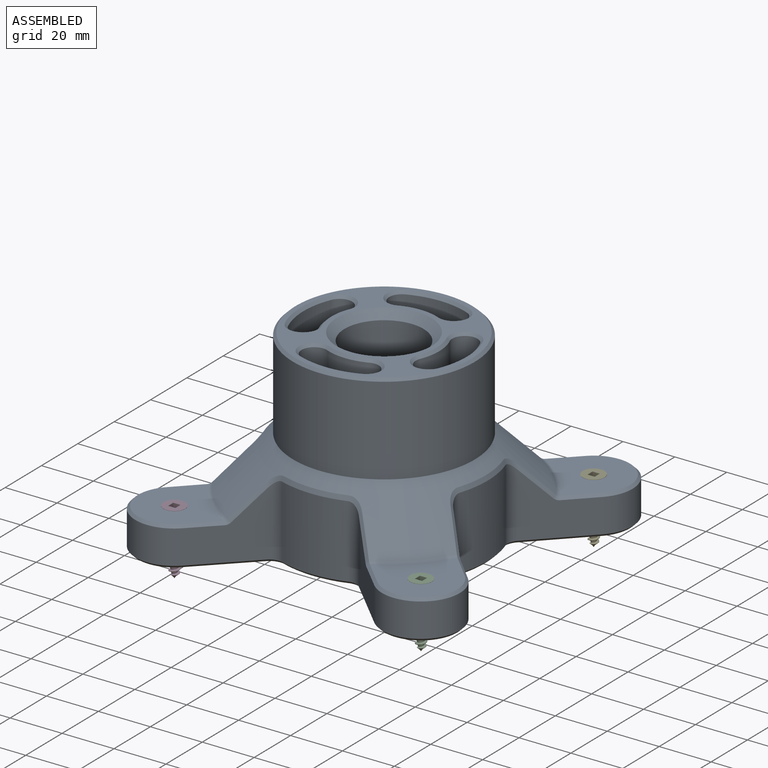
[diagram: assembled view]
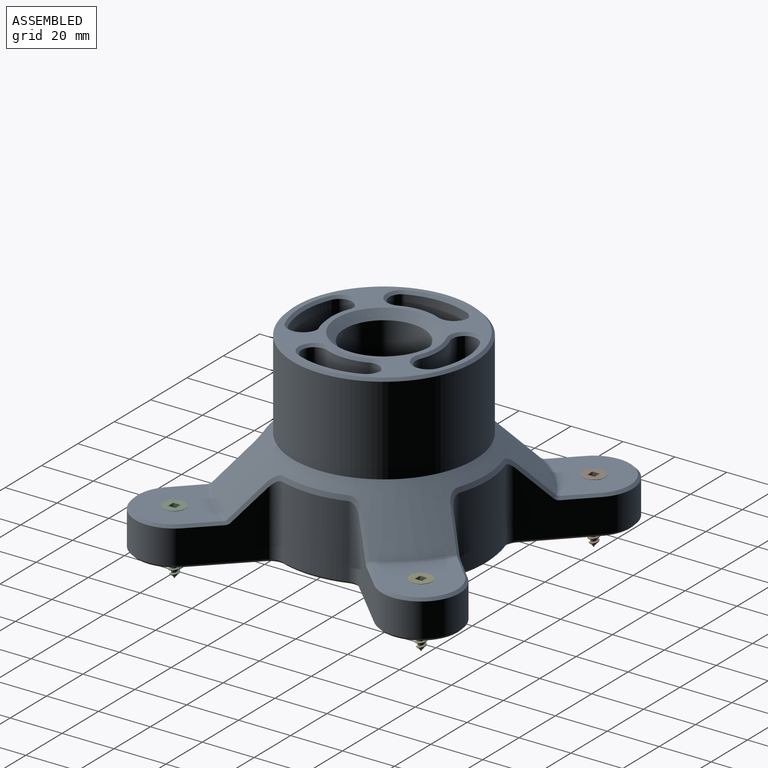
[diagram: assembled view, second angle]
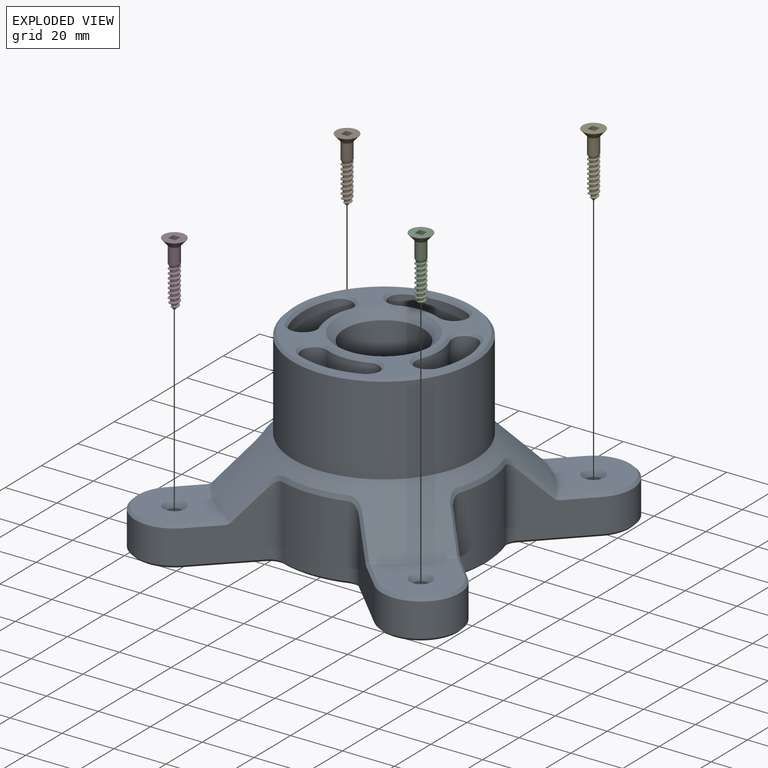
[diagram: exploded view]
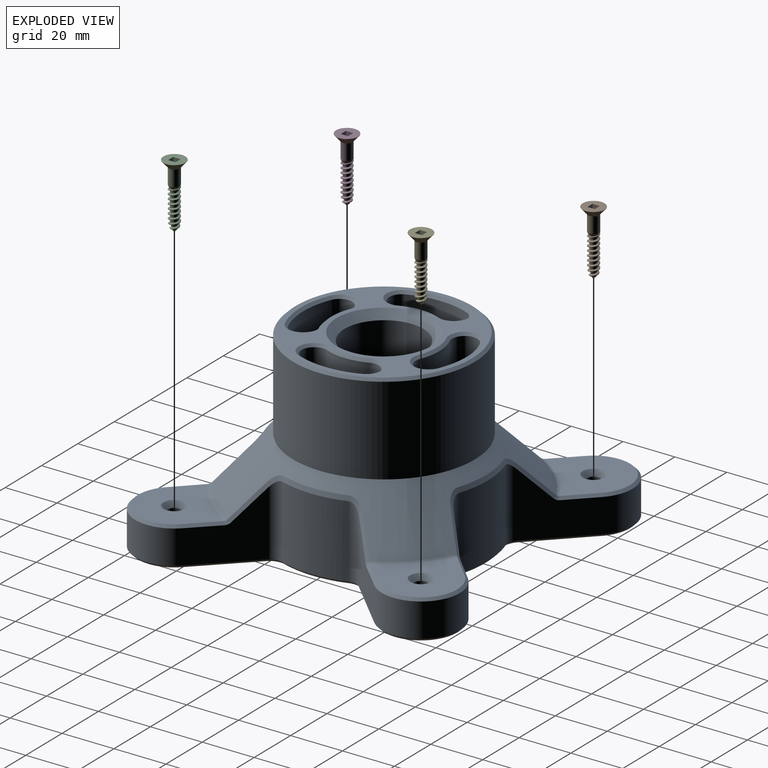
[diagram: exploded view, second angle]
FCSTD DOCUMENT  (FreeCAD 1.0R39319 (Git))
Label: Bench_VDI30_stand
Comment: A VDI-30 tool stand that can be mouted to a wood-top workbench with #8 wood screws.
License: Attribution-NonCommercial-ShareAlike 4.0 International
LicenseURL: https://creativecommons.org/licenses/by-nc-sa/4.0/
objects: TechDraw::DrawViewDimension×12, Sketcher::SketchObject×6, App::Link×5, App::FeaturePython×5, PartDesign::Chamfer×4, PartDesign::Pocket×3, PartDesign::Pad×2, PartDesign::PolarPattern×2, PartDesign::Fillet×2, TechDraw::DrawProjGroupItem×2, TechDraw::DrawViewAnnotation×2, TechDraw::DrawLeaderLine×2, PartDesign::Hole×1, PartDesign::Body×1, Part::Feature×1, Assembly::JointGroup×1, Assembly::AssemblyObject×1, TechDraw::DrawSVGTemplate×1, TechDraw::DrawProjGroup×1, TechDraw::DrawViewSection×1, +2 more types
note: 75 computed .brp shape members not serialized (recipe doc carries the construction recipe); baked Part::Feature solids carry a one-line shape summary decoded from their .brp

FEATURE [Sketcher::SketchObject] Sketch004  label="BaseSketch001"
  ArcFitTolerance = 1e-06
  AttachmentSupport = -> [XY_Plane001]
  FullyConstrained = true
  MakeInternals = false
  MapMode = 5
  sketch-geometry (10):
    g0: LineSegment StartX=-47.5 StartY=-62.5 StartZ=0 EndX=47.5 EndY=-62.5 EndZ=0
    g1: LineSegment StartX=62.5 StartY=-47.5 StartZ=0 EndX=62.5 EndY=47.5 EndZ=0
    g2: LineSegment StartX=47.5 StartY=62.5 StartZ=0 EndX=-47.5 EndY=62.5 EndZ=0
    g3: LineSegment StartX=-62.5 StartY=47.5 StartZ=0 EndX=-62.5 EndY=-47.5 EndZ=0
    g4: ArcOfCircle CenterX=-47.5 CenterY=-47.5 CenterZ=0 NormalX=0 NormalY=0 NormalZ=1 AngleXU=0 Radius=15 StartAngle=3.14159 EndAngle=4.71239
    g5: ArcOfCircle CenterX=47.5 CenterY=-47.5 CenterZ=0 NormalX=0 NormalY=0 NormalZ=1 AngleXU=0 Radius=15 StartAngle=4.71239 EndAngle=6.28319
    g6: ArcOfCircle CenterX=47.5 CenterY=47.5 CenterZ=0 NormalX=0 NormalY=0 NormalZ=1 AngleXU=0 Radius=15 StartAngle=3.8e-15 EndAngle=1.5708
    g7: ArcOfCircle CenterX=-47.5 CenterY=47.5 CenterZ=0 NormalX=0 NormalY=0 NormalZ=1 AngleXU=0 Radius=15 StartAngle=1.5708 EndAngle=3.14159
    g8: GeomPoint [constr] X=62.5 Y=62.5 Z=0
    g9: GeomPoint [constr] X=0 Y=0 Z=0
  constraints (22):
    c: Tangent(g0,g4) = -1.5708
    c: Tangent(g0,g5) = -1.5708
    c: Tangent(g1,g5) = -1.5708
    c: Tangent(g1,g6) = -1.5708
    c: Tangent(g2,g6) = -1.5708
    c: Tangent(g2,g7) = -1.5708
    c: Tangent(g3,g7) = -1.5708
    c: Tangent(g3,g4) = -1.5708
    c: Horizontal(g0)
    c: Horizontal(g2)
    c: Vertical(g1)
    c: Vertical(g3)
    c: Equal(g4,g5)
    c: Equal(g5,g6)
    c: Equal(g6,g7)
    c: Symmetric(g2,g0,g9)
    c: PointOnObject(g8,g1)
    c: PointOnObject(g8,g2)
    c: Distance(g1,g3) = 125  'LenX'
    c: Distance(g0,g2) = 125  'LenY'
    c: Radius(g5) = 15  'CornerRad'
    c: Coincident(g9,g-1)
FEATURE [PartDesign::Pad] Pad002  label="Base001"
  Direction = (0,0,1)
  Length = 15
  Length2 = 10
  Profile = -> Sketch004
  ReferenceAxis = -> Sketch004 [N_Axis]
  Refine = true
  Suppressed = false
  Type = 0
FEATURE [Sketcher::SketchObject] Sketch005
  ArcFitTolerance = 1e-06
  AttachmentSupport = -> [Pad002]
  FullyConstrained = true
  MakeInternals = false
  MapMode = 5
  Placement = pos=(0,0,15) rot=(0,0,1;0rad)
  sketch-geometry (1):
    g0: Circle CenterX=0 CenterY=0 CenterZ=0 NormalX=0 NormalY=0 NormalZ=1 AngleXU=0 Radius=35
  constraints (2):
    c: Diameter(g0) = 70
    c: Coincident(g0,g-1)
FEATURE [PartDesign::Pad] Pad003
  BaseFeature = -> Pad002
  Direction = (0,0,1)
  Length = 55
  Length2 = 10
  Profile = -> Sketch005
  ReferenceAxis = -> Sketch005 [N_Axis]
  Refine = true
  Suppressed = false
  Type = 0
  expr: Length = 70 mm - Pad002.Length
FEATURE [Sketcher::SketchObject] Sketch006
  ArcFitTolerance = 1e-06
  AttachmentSupport = -> [Pad003]
  FullyConstrained = true
  MakeInternals = false
  MapMode = 5
  Placement = pos=(0,0,70) rot=(0,0,1;0rad)
  sketch-geometry (1):
    g0: Circle CenterX=0 CenterY=0 CenterZ=0 NormalX=0 NormalY=0 NormalZ=1 AngleXU=0 Radius=15.25
  constraints (2):
    c: Diameter(g0) = 30.5
    c: Coincident(g0,g-1)
FEATURE [PartDesign::Pocket] Pocket001
  BaseFeature = -> Pad003
  Direction = (0,0,-1)
  Length = 5
  Length2 = 5
  Profile = -> Sketch006
  ReferenceAxis = -> Sketch006 [N_Axis]
  Refine = true
  Suppressed = false
  Type = 1
FEATURE [Sketcher::SketchObject] Sketch007
  ArcFitTolerance = 1e-06
  FullyConstrained = false
  MakeInternals = false
  MapMode = 5
  Placement = pos=(0,0,15) rot=(0,0,1;0rad)
  sketch-geometry (4):
    g0: Circle CenterX=47.5 CenterY=-47.5 CenterZ=0 NormalX=0 NormalY=0 NormalZ=1 AngleXU=0 Radius=4.88756
    g1: Circle CenterX=47.5 CenterY=47.5 CenterZ=0 NormalX=0 NormalY=0 NormalZ=1 AngleXU=0 Radius=5.71955
    g2: Circle CenterX=-47.5 CenterY=47.5 CenterZ=0 NormalX=0 NormalY=0 NormalZ=1 AngleXU=0 Radius=5.99599
    g3: Circle CenterX=-47.5 CenterY=-47.5 CenterZ=0 NormalX=0 NormalY=0 NormalZ=1 AngleXU=0 Radius=6.64661
  constraints (4):
    c: Coincident(g0,g-6)
    c: Coincident(g1,g-3)
    c: Coincident(g2,g-4)
    c: Coincident(g3,g-5)
FEATURE [PartDesign::Hole] Hole001  label="#8_WoodScrewHoles"
  BaseFeature = -> Pocket001
  CustomThreadClearance = 0
  Depth = 25
  DepthType = 0
  Diameter = 5
  DrillForDepth = false
  DrillPoint = 1
  DrillPointAngle = 118
  HoleCutCountersinkAngle = 82
  HoleCutCustomValues = false
  HoleCutDepth = 0
  HoleCutDiameter = 8.4328
  HoleCutType = 2
  ModelThread = false
  Profile = -> Sketch007
  Refine = true
  Suppressed = false
  Tapered = false
  TaperedAngle = 90
  ThreadClass = 0
  ThreadDepth = 25
  ThreadDepthType = 0
  ThreadDirection = 0
  ThreadFit = 0
  ThreadSize = 6
  ThreadType = 3
  Threaded = false
  UseCustomThreadClearance = false
FEATURE [Sketcher::SketchObject] Sketch008
  ArcFitTolerance = 1e-06
  AttachmentSupport = -> [XY_Plane001]
  FullyConstrained = true
  MakeInternals = false
  MapMode = 5
  sketch-geometry (8):
    g0: Circle [constr] CenterX=0 CenterY=0 CenterZ=0 NormalX=0 NormalY=0 NormalZ=1 AngleXU=0 Radius=40
    g1: ArcOfCircle CenterX=5.3e-15 CenterY=-3.5e-15 CenterZ=0 NormalX=0 NormalY=0 NormalZ=1 AngleXU=0 Radius=40 StartAngle=1.17406 EndAngle=1.96753
    g2: LineSegment [constr] StartX=-47.5 StartY=47.5 StartZ=0 EndX=0.5 EndY=0 EndZ=0
    g3: ArcOfCircle CenterX=-47.5 CenterY=47.5 CenterZ=0 NormalX=0 NormalY=0 NormalZ=1 AngleXU=0 Radius=15 StartAngle=0.790634 EndAngle=1.5708
    g4: ArcOfCircle CenterX=47.5 CenterY=47.5 CenterZ=0 NormalX=0 NormalY=0 NormalZ=1 AngleXU=0 Radius=15 StartAngle=1.5708 EndAngle=2.35096
    g5: LineSegment StartX=-36.9491 StartY=58.162 StartZ=0 EndX=-15.4563 EndY=36.8931 EndZ=0
    g6: LineSegment StartX=15.4563 StartY=36.8931 StartZ=0 EndX=36.9491 EndY=58.162 EndZ=0
    g7: LineSegment StartX=47.5 StartY=62.5 StartZ=0 EndX=-47.5 EndY=62.5 EndZ=0
  constraints (19):
    c: Diameter(g0) = 80
    c: Coincident(g0,g-1)
    c: PointOnObject(g1,g0)
    c: PointOnObject(g1,g0)
    c: Equal(g1,g0)
    c: Horizontal(g1,g1)
    c: Symmetric(g-1,g-1,g2)
    c: Coincident(g3,g2)
    c: Coincident(g3,g-4)
    c: Coincident(g4,g-3)
    c: Coincident(g5,g1)
    c: Coincident(g6,g1)
    c: Tangent(g7,g4) = -1.5708
    c: Coincident(g7,g3)
    c: Tangent(g5,g3) = 1.5708
    c: Tangent(g6,g4) = 1.5708
    c: Parallel(g5,g2)
    c: Equal(g6,g5)
    c: Coincident(g2,g-4)
FEATURE [PartDesign::Chamfer] Chamfer002
  Angle = 45
  Base = -> Hole001 [Edge29]
  BaseFeature = -> Hole001
  ChamferType = 0
  FlipDirection = false
  Refine = true
  Size = 20
  Size2 = 1
  SupportTransform = false
  Suppressed = false
  UseAllEdges = false
FEATURE [PartDesign::Pocket] Pocket002
  BaseFeature = -> Chamfer002
  Direction = (0,0,-1)
  Length = 5
  Length2 = 5
  Profile = -> Sketch008
  ReferenceAxis = -> Sketch008 [N_Axis]
  Refine = true
  Reversed = true
  Suppressed = false
  Type = 1
FEATURE [PartDesign::PolarPattern] PolarPattern
  Angle = 360
  Axis = -> Sketch008 [N_Axis]
  BaseFeature = -> Pocket002
  Mode = 0
  Occurrences = 4
  Offset = 120
  Originals = -> [Pocket002]
  Refine = true
  Suppressed = false
  TransformMode = 0
FEATURE [PartDesign::Fillet] Fillet001
  Base = -> PolarPattern [Edge52,Edge55,Edge68,Edge65,Edge28,Edge35,Edge40,Edge30]
  BaseFeature = -> PolarPattern
  Radius = 5
  Refine = true
  SupportTransform = false
  Suppressed = false
  UseAllEdges = false
FEATURE [PartDesign::Fillet] Fillet002
  Base = -> Fillet001 [Edge10,Edge3,Edge26,Edge15]
  BaseFeature = -> Fillet001
  Radius = 2
  Refine = true
  SupportTransform = false
  Suppressed = false
  UseAllEdges = false
FEATURE [PartDesign::Chamfer] Chamfer003
  Angle = 45
  Base = -> Fillet002 [Edge41,Edge30,Edge113,Edge80]
  BaseFeature = -> Fillet002
  ChamferType = 0
  FlipDirection = false
  Refine = true
  Size = 1
  Size2 = 1
  SupportTransform = false
  Suppressed = false
  UseAllEdges = false
FEATURE [PartDesign::Chamfer] Chamfer004
  Angle = 45
  Base = -> Chamfer003 [Edge256]
  BaseFeature = -> Chamfer003
  ChamferType = 0
  FlipDirection = false
  Refine = true
  Size = 3
  Size2 = 1
  SupportTransform = false
  Suppressed = false
  UseAllEdges = false
FEATURE [Sketcher::SketchObject] Sketch009
  ArcFitTolerance = 1e-06
  AttachmentSupport = -> [Chamfer004]
  ExternalGeometry = -> [Chamfer004]
  FullyConstrained = true
  MakeInternals = false
  MapMode = 5
  Placement = pos=(0,0,70) rot=(0,0,1;0rad)
  sketch-geometry (4):
    g0: ArcOfCircle CenterX=0 CenterY=0 CenterZ=0 NormalX=0 NormalY=0 NormalZ=1 AngleXU=0 Radius=31 StartAngle=1.1781 EndAngle=1.9635
    g1: ArcOfCircle CenterX=-9.9976 CenterY=24.1364 CenterZ=0 NormalX=0 NormalY=0 NormalZ=1 AngleXU=0 Radius=4.875 StartAngle=1.9635 EndAngle=5.10509
    g2: ArcOfCircle CenterX=9.9976 CenterY=24.1364 CenterZ=0 NormalX=0 NormalY=0 NormalZ=1 AngleXU=0 Radius=4.875 StartAngle=4.31969 EndAngle=7.46128
    g3: ArcOfCircle CenterX=0 CenterY=0 CenterZ=0 NormalX=0 NormalY=0 NormalZ=1 AngleXU=0 Radius=21.25 StartAngle=1.1781 EndAngle=1.9635
  constraints (10):
    c: Coincident(g0,g3)
    c: Tangent(g3,g2) = 1.5708
    c: Tangent(g3,g1) = 1.5708
    c: Tangent(g0,g2) = -1.5708
    c: Tangent(g0,g1) = -1.5708
    c: Coincident(g0,g-1)
    c: Horizontal(g2,g1)
    c: Distance(g3,g-3) = 3
    c: Distance(g0,g-4) = 3
    c: Angle(g0) = 0.785398
FEATURE [PartDesign::Pocket] Pocket003
  BaseFeature = -> Chamfer004
  Direction = (0,0,-1)
  Length = 5
  Length2 = 5
  Profile = -> Sketch009
  ReferenceAxis = -> Sketch009 [N_Axis]
  Refine = true
  Suppressed = false
  Type = 1
FEATURE [PartDesign::PolarPattern] PolarPattern001
  Angle = 360
  Axis = -> Sketch009 [N_Axis]
  BaseFeature = -> Pocket003
  Mode = 0
  Occurrences = 4
  Offset = 120
  Originals = -> [Pocket003]
  Refine = true
  Suppressed = false
  TransformMode = 0
FEATURE [PartDesign::Chamfer] Chamfer005
  Angle = 45
  Base = -> PolarPattern001 [Edge5,Edge13,Edge17,Edge7,Edge25,Edge33,Edge53,Edge44]
  BaseFeature = -> PolarPattern001
  ChamferType = 0
  FlipDirection = false
  Refine = true
  Size = 1
  Size2 = 1
  SupportTransform = false
  Suppressed = false
  UseAllEdges = false
FEATURE [PartDesign::Body] Body001  label="Body"
  AllowCompound = false
  Group = -> [Sketch004,Pad002,Sketch005,Pad003,Sketch006,Pocket001,Sketch007,Hole001,Sketch008,Chamfer002,Pocket002,PolarPattern,Fillet001,Fillet002,Chamfer003,Chamfer004,Sketch009,Pocket003,PolarPattern001,Chamfer005]
  Origin = -> Origin001
  Tip = -> Chamfer005
FEATURE [Part::Feature] Part__Feature  label="90610A199_Square-Drive Flat Head Screws for Wood"
  shape: bbox 25.82 x 8.433 x 8.433 mm, 50 faces (baked)
FEATURE [App::Link] BodyV002  label="BodyV003"
  LinkedObject = -> Body001
FEATURE [App::FeaturePython] GroundedJoint  # Assembly grounded joint (typed FeaturePython)
  ObjectToGround = -> BodyV002
FEATURE [App::Link] _0610A199_Square_Drive_Flat_Head_Screws_for_Wood  label="90610A199_Square-Drive Flat Head Screws for Wood001"
  LinkPlacement = pos=(-47.5,47.5,2.38557) rot=(0,1,0;1.5708rad)
  LinkedObject = -> Part__Feature
  Placement = pos=(-47.5,47.5,2.38557) rot=(0,1,0;1.5708rad)
FEATURE [App::Link] _0610A199_Square_Drive_Flat_Head_Screws_for_Wood001  label="90610A199_Square-Drive Flat Head Screws for Wood002"
  LinkPlacement = pos=(47.5,-47.5,2.38557) rot=(0,1,0;1.5708rad)
  LinkedObject = -> Part__Feature
  Placement = pos=(47.5,-47.5,2.38557) rot=(0,1,0;1.5708rad)
FEATURE [App::Link] _0610A199_Square_Drive_Flat_Head_Screws_for_Wood002  label="90610A199_Square-Drive Flat Head Screws for Wood003"
  LinkPlacement = pos=(-47.5,-47.5,2.38557) rot=(0,1,0;1.5708rad)
  LinkedObject = -> Part__Feature
  Placement = pos=(-47.5,-47.5,2.38557) rot=(0,1,0;1.5708rad)
FEATURE [App::Link] _0610A199_Square_Drive_Flat_Head_Screws_for_Wood003  label="90610A199_Square-Drive Flat Head Screws for Wood004"
  LinkPlacement = pos=(47.5,47.5,2.38557) rot=(0,1,0;1.5708rad)
  LinkedObject = -> Part__Feature
  Placement = pos=(47.5,47.5,2.38557) rot=(0,1,0;1.5708rad)
FEATURE [App::FeaturePython] Joint  label="Fixed"  # Assembly joint (typed FeaturePython)
  Activated = true
  AngleMax = 0
  AngleMin = 0
  Detach1 = false
  Detach2 = false
  Distance = 0
  Distance2 = 0
  EnableAngleMax = false
  EnableAngleMin = false
  EnableLengthMax = false
  EnableLengthMin = false
  JointType = 0 (Fixed)
  LengthMax = 0
  LengthMin = 0
  Placement1 = pos=(-7.76401,0,0) rot=(0,-1,0;1.5708rad)
  Placement2 = pos=(47.5,-47.5,10.1496) rot=(0,0,1;0rad)
  Reference1 = -> Assembly [_0610A199_Square_Drive_Flat_Head_Screws_for_Wood001.Face36,_0610A199_Square_Drive_Flat_Head_Screws_for_Wood001.Face36]
  Reference2 = -> Assembly [BodyV002.Face155,BodyV002.Face155]
FEATURE [App::FeaturePython] Joint001  label="Fixed001"  # Assembly joint (typed FeaturePython)
  Activated = true
  AngleMax = 0
  AngleMin = 0
  Detach1 = false
  Detach2 = false
  Distance = 0
  Distance2 = 0
  EnableAngleMax = false
  EnableAngleMin = false
  EnableLengthMax = false
  EnableLengthMin = false
  JointType = 0 (Fixed)
  LengthMax = 0
  LengthMin = 0
  Placement1 = pos=(-7.76401,0,0) rot=(0,-1,0;1.5708rad)
  Placement2 = pos=(-47.5,-47.5,10.1496) rot=(0,0,1;0rad)
  Reference1 = -> Assembly [_0610A199_Square_Drive_Flat_Head_Screws_for_Wood002.Face36,_0610A199_Square_Drive_Flat_Head_Screws_for_Wood002.Face36]
  Reference2 = -> Assembly [BodyV002.Face154,BodyV002.Face154]
FEATURE [App::FeaturePython] Joint002  label="Fixed002"  # Assembly joint (typed FeaturePython)
  Activated = true
  AngleMax = 0
  AngleMin = 0
  Detach1 = false
  Detach2 = false
  Distance = 0
  Distance2 = 0
  EnableAngleMax = false
  EnableAngleMin = false
  EnableLengthMax = false
  EnableLengthMin = false
  JointType = 0 (Fixed)
  LengthMax = 0
  LengthMin = 0
  Placement1 = pos=(-47.5,47.5,10.1496) rot=(0,0,1;0rad)
  Placement2 = pos=(-7.76401,0,0) rot=(0,-1,0;1.5708rad)
  Reference1 = -> Assembly [BodyV002.Face156,BodyV002.Face156]
  Reference2 = -> Assembly [_0610A199_Square_Drive_Flat_Head_Screws_for_Wood.Face36,_0610A199_Square_Drive_Flat_Head_Screws_for_Wood.Face36]
FEATURE [App::FeaturePython] Joint003  label="Fixed003"  # Assembly joint (typed FeaturePython)
  Activated = true
  AngleMax = 0
  AngleMin = 0
  Detach1 = false
  Detach2 = false
  Distance = 0
  Distance2 = 0
  EnableAngleMax = false
  EnableAngleMin = false
  EnableLengthMax = false
  EnableLengthMin = false
  JointType = 0 (Fixed)
  LengthMax = 0
  LengthMin = 0
  Placement1 = pos=(47.5,47.5,10.1496) rot=(0,0,1;0rad)
  Placement2 = pos=(-7.76401,0,0) rot=(0,-1,0;1.5708rad)
  Reference1 = -> Assembly [BodyV002.Face157,BodyV002.Face157]
  Reference2 = -> Assembly [_0610A199_Square_Drive_Flat_Head_Screws_for_Wood003.Face36,_0610A199_Square_Drive_Flat_Head_Screws_for_Wood003.Face36]
FEATURE [Assembly::JointGroup] Joints
  Group = -> [GroundedJoint,Joint,Joint001,Joint002,Joint003]
FEATURE [Assembly::AssemblyObject] Assembly
  Group = -> [Joints,BodyV002,GroundedJoint,_0610A199_Square_Drive_Flat_Head_Screws_for_Wood,_0610A199_Square_Drive_Flat_Head_Screws_for_Wood001,_0610A199_Square_Drive_Flat_Head_Screws_for_Wood002,_0610A199_Square_Drive_Flat_Head_Screws_for_Wood003,Joint,Joint001,Joint002,Joint003]
  Origin = -> Origin002
  Type = Assembly
FEATURE [TechDraw::DrawSVGTemplate] Template
  EditableTexts = approval_person=Luca Goodman; creator=Dennis Chaves; date_of_issue=11/6/2025; document_type=Component Drawing; general_tolerances=ISO 2768-m; identification_number=--; language_code=EN; legal_owner_1=dennischaves.xyz; part_material=PLA Generic; revision_index=AAA; scale=2 : 1; sheet_number=1 / 1; title=Benchtop-fixed VDI30 stand
  Height = 297
  Orientation = 1
  Template = <userpath>/FreeCAD_1.0.2-conda-Windows-x86_64-py311/data/Mod/TechDraw/Templates/A3_Landscape_ISO5457_minimal.svg
  Width = 420
FEATURE [TechDraw::DrawProjGroupItem] View  label="Front"
  CoarseView = false
  Direction = (0,0,1)
  Focus = 100
  HardHidden = false
  IsoCount = 0
  IsoHidden = false
  IsoVisible = false
  LockPosition = true
  Perspective = false
  Rotation = 0
  RotationVector = (1,0,0)
  Scale = 0.5
  ScaleType = 2
  ScrubCount = 1
  SeamHidden = false
  SeamVisible = false
  SmoothHidden = false
  SmoothVisible = true
  Source = -> [Body001]
  Type = 0
  X = 0
  XDirection = (1,0,0)
  Y = 0
FEATURE [TechDraw::DrawProjGroupItem] ProjItem  label="Right"
  CoarseView = false
  Direction = (1,0,1e-16)
  Focus = 100
  HardHidden = false
  IsoCount = 0
  IsoHidden = false
  IsoVisible = false
  LockPosition = false
  Perspective = false
  Rotation = 0
  RotationVector = (1,0,0)
  ScaleType = 1
  ScrubCount = 1
  SeamHidden = false
  SeamVisible = false
  SmoothHidden = false
  SmoothVisible = true
  Source = -> [Body001]
  Type = 2
  X = -78.75
  XDirection = (1e-16,0,-1)
  Y = 0
FEATURE [TechDraw::DrawProjGroup] ProjGroup
  Anchor = -> View
  AutoDistribute = true
  LockPosition = false
  ProjectionType = 0
  Rotation = 0
  Scale = 0.5
  ScaleType = 0
  Source = -> [Body001]
  Views = -> [View,ProjItem]
  X = 210
  Y = 148.5
  spacingX = 30
  spacingY = 15
FEATURE [TechDraw::DrawViewSection] SectionView  label="Section A - A"
  BaseView = -> View
  CoarseView = false
  CutSurfaceDisplay = 2
  Direction = (-0.707107,-0.707107,0)
  FileGeomPattern = <userpath>\FreeCAD_1.0.2-conda-Windows-x86_64-py311\data\Mod/TechDraw/PAT/FCPAT.pat
  FileHatchPattern = <userpath>\FreeCAD_1.0.2-conda-Windows-x86_64-py311\data\Mod/TechDraw/Patterns/simple.svg
  Focus = 100
  FuseBeforeCut = false
  HardHidden = false
  HatchOffset = (0,0,0)
  HatchRotation = 0
  HatchScale = 1
  IsoCount = 0
  IsoHidden = false
  IsoVisible = false
  LockPosition = false
  NameGeomPattern = Diamond
  Perspective = false
  Rotation = -45
  Scale = 0.5
  ScaleType = 0
  ScrubCount = 1
  SeamHidden = false
  SeamVisible = false
  SectionDirection = 4
  SectionLineStretch = 1
  SectionNormal = (-0.707107,-0.707107,0)
  SectionOrigin = (0,0,35)
  SectionSymbol = A
  SmoothHidden = false
  SmoothVisible = true
  Source = -> [Body001]
  TrimAfterCut = false
  UsePreviousCut = false
  X = 284.714
  XDirection = (0.707107,-0.707107,0)
  Y = 231.235
FEATURE [TechDraw::DrawViewDimension] Dimension
  AngleOverride = false
  Arbitrary = false
  ArbitraryTolerances = false
  BoxCorners = (2) [(-17.5,-31.25,-1e-07),(17.5,31.25,1e-07)]
  EqualTolerance = true
  ExtensionAngle = 0
  FormatSpec = %.2w
  FormatSpecOverTolerance = %+.2w
  FormatSpecUnderTolerance = %+.2w
  Inverted = false
  LineAngle = 0
  LockPosition = false
  MeasureType = 1
  OverTolerance = 0
  References2D = -> [ProjItem]
  Rotation = 0
  ScaleType = 1
  TheoreticalExact = false
  Type = 0
  UnderTolerance = 0
  X = -39.875
  Y = 0
FEATURE [TechDraw::DrawViewDimension] Dimension001
  AngleOverride = false
  Arbitrary = false
  ArbitraryTolerances = false
  BoxCorners = (2) [(-17.5,-31.25,-1e-07),(17.5,31.25,1e-07)]
  EqualTolerance = true
  ExtensionAngle = 0
  FormatSpec = %.2w
  FormatSpecOverTolerance = %+.2w
  FormatSpecUnderTolerance = %+.2w
  Inverted = false
  LineAngle = 0
  LockPosition = false
  MeasureType = 1
  OverTolerance = 0
  References2D = -> [ProjItem]
  Rotation = 0
  ScaleType = 1
  TheoreticalExact = false
  Type = 0
  UnderTolerance = 0
  X = -8.75
  Y = -33.9309
FEATURE [TechDraw::DrawViewDimension] Dimension002
  AngleOverride = false
  Arbitrary = false
  ArbitraryTolerances = false
  BoxCorners = (2) [(-41.0741,-24.3952,-1e-07),(24.3952,41.0741,1e-07)]
  EqualTolerance = true
  ExtensionAngle = 0
  FormatSpec = %.2w
  FormatSpecOverTolerance = %+.2w
  FormatSpecUnderTolerance = %+.2w
  Inverted = false
  LineAngle = 0
  LockPosition = false
  MeasureType = 1
  OverTolerance = 0
  References2D = -> [SectionView]
  Rotation = 0
  ScaleType = 1
  TheoreticalExact = false
  Type = 0
  UnderTolerance = 0
  X = -16.8774
  Y = -16.8774
FEATURE [TechDraw::DrawViewDimension] Dimension003
  AngleOverride = false
  Arbitrary = false
  ArbitraryTolerances = false
  BoxCorners = (2) [(-41.0741,-24.3952,-1e-07),(24.3952,41.0741,1e-07)]
  EqualTolerance = true
  ExtensionAngle = 0
  FormatSpec = %.2w
  FormatSpecOverTolerance = %+.2w
  FormatSpecUnderTolerance = %+.2w
  Inverted = false
  LineAngle = 0
  LockPosition = false
  MeasureType = 1
  OverTolerance = 0
  References2D = -> [SectionView]
  Rotation = 0
  ScaleType = 1
  TheoreticalExact = false
  Type = 0
  UnderTolerance = 0
  X = -55.1898
  Y = 35.7444
FEATURE [TechDraw::DrawViewDimension] Dimension004
  AngleOverride = false
  Arbitrary = false
  ArbitraryTolerances = false
  BoxCorners = (2) [(-41.0741,-24.3952,-1e-07),(24.3952,41.0741,1e-07)]
  EqualTolerance = true
  ExtensionAngle = 0
  FormatSpec = %.2w
  FormatSpecOverTolerance = %+.2w
  FormatSpecUnderTolerance = %+.2w
  Inverted = false
  LineAngle = 0
  LockPosition = false
  MeasureType = 1
  OverTolerance = 0
  References2D = -> [SectionView]
  Rotation = 0
  ScaleType = 1
  TheoreticalExact = false
  Type = 0
  UnderTolerance = 0
  X = 39.2558
  Y = -39.2558
FEATURE [TechDraw::DrawViewAnnotation] Annotation
  Font = osifont
  LineSpace = 100
  LockPosition = false
  MaxWidth = -1
  Rotation = 0
  ScaleType = 1
  Text = 3 x 45°
  TextSize = 5
  TextStyle = 0
  X = 314.115
  Y = 271.135
FEATURE [TechDraw::DrawLeaderLine] LeaderLine
  AutoHorizontal = true
  EndSymbol = 7
  LeaderParent = -> Annotation
  LockPosition = true
  RotatesWithParent = true
  Rotation = 0
  Scalable = false
  ScaleType = 1
  StartSymbol = 0
  WayPoints = (4) [(0,0,0),(18.1909,-25.2615,0),(31.6043,-24.9496,0),(32.852,-24.9496,0)]
  X = -36.1191
  Y = -30.6237
FEATURE [TechDraw::DrawViewDimension] Dimension007
  AngleOverride = false
  Arbitrary = false
  ArbitraryTolerances = false
  BoxCorners = (2) [(-31.25,-31.25,-1e-07),(31.25,31.25,1e-07)]
  EqualTolerance = true
  ExtensionAngle = 0
  FormatSpec = R%.2w
  FormatSpecOverTolerance = %+.2w
  FormatSpecUnderTolerance = %+.2w
  Inverted = false
  LineAngle = 0
  LockPosition = false
  MeasureType = 1
  OverTolerance = 0
  References2D = -> [View]
  Rotation = 0
  ScaleType = 1
  TheoreticalExact = false
  Type = 4
  UnderTolerance = 0
  X = -53.2006
  Y = -37.8036
FEATURE [TechDraw::DrawViewDimension] Dimension008
  AngleOverride = false
  Arbitrary = false
  ArbitraryTolerances = false
  BoxCorners = (2) [(-31.25,-31.25,-1e-07),(31.25,31.25,1e-07)]
  EqualTolerance = true
  ExtensionAngle = 0
  FormatSpec = %.2w
  FormatSpecOverTolerance = %+.2w
  FormatSpecUnderTolerance = %+.2w
  Inverted = false
  LineAngle = 0
  LockPosition = false
  MeasureType = 1
  OverTolerance = 0
  References2D = -> [View]
  Rotation = 0
  ScaleType = 1
  TheoreticalExact = false
  Type = 1
  UnderTolerance = 0
  X = 0
  Y = 64.7909
FEATURE [TechDraw::DrawViewDimension] Dimension009
  AngleOverride = false
  Arbitrary = false
  ArbitraryTolerances = false
  BoxCorners = (2) [(-31.25,-31.25,-1e-07),(31.25,31.25,1e-07)]
  EqualTolerance = true
  ExtensionAngle = 0
  FormatSpec = %.2w
  FormatSpecOverTolerance = %+.2w
  FormatSpecUnderTolerance = %+.2w
  Inverted = false
  LineAngle = 0
  LockPosition = false
  MeasureType = 1
  OverTolerance = 0
  References2D = -> [View]
  Rotation = 0
  ScaleType = 1
  TheoreticalExact = false
  Type = 2
  UnderTolerance = 0
  X = 43.9781
  Y = 0
FEATURE [TechDraw::DrawViewDimension] Dimension010
  AngleOverride = false
  Arbitrary = false
  ArbitraryTolerances = false
  BoxCorners = (2) [(-41.0741,-24.3952,-1e-07),(24.3952,41.0741,1e-07)]
  EqualTolerance = true
  ExtensionAngle = 0
  FormatSpec = %.2w
  FormatSpecOverTolerance = %+.2w
  FormatSpecUnderTolerance = %+.2w
  Inverted = false
  LineAngle = 0
  LockPosition = false
  MeasureType = 1
  OverTolerance = 0
  References2D = -> [SectionView]
  Rotation = 0
  ScaleType = 1
  TheoreticalExact = false
  Type = 6
  UnderTolerance = 0
  X = 33.8333
  Y = -18.5294
FEATURE [TechDraw::DrawViewDimension] Dimension011
  AngleOverride = false
  Arbitrary = false
  ArbitraryTolerances = false
  BoxCorners = (2) [(-17.5,-31.25,-1e-07),(17.5,31.25,1e-07)]
  EqualTolerance = true
  ExtensionAngle = 0
  FormatSpec = %.2w x 45°
  FormatSpecOverTolerance = %+.2w
  FormatSpecUnderTolerance = %+.2w
  Inverted = false
  LineAngle = 0
  LockPosition = false
  MeasureType = 1
  OverTolerance = 0
  References2D = -> [ProjItem]
  Rotation = 0
  ScaleType = 1
  TheoreticalExact = false
  Type = 1
  UnderTolerance = 0
  X = -30.0801
  Y = 33.6863
FEATURE [TechDraw::DrawViewDimension] Dimension012
  AngleOverride = false
  Arbitrary = false
  ArbitraryTolerances = false
  BoxCorners = (2) [(-31.25,-31.25,-1e-07),(31.25,31.25,1e-07)]
  EqualTolerance = true
  ExtensionAngle = 0
  FormatSpec = ⌀%.2w
  FormatSpecOverTolerance = %+.2w
  FormatSpecUnderTolerance = %+.2w
  Inverted = false
  LineAngle = 0
  LockPosition = false
  MeasureType = 1
  OverTolerance = 0
  References2D = -> [View]
  Rotation = 0
  ScaleType = 1
  TheoreticalExact = false
  Type = 5
  UnderTolerance = 0
  X = -51.2743
  Y = 54.1668
FEATURE [TechDraw::DrawViewAnnotation] Annotation001
  Font = osifont
  LineSpace = 100
  LockPosition = false
  MaxWidth = -1
  Rotation = 0
  ScaleType = 1
  Text = 4x ⌀5 | ⌵ 10 × 82°
  TextSize = 5
  TextStyle = 0
  X = 307.179
  Y = 141.934
FEATURE [TechDraw::DrawLeaderLine] LeaderLine001
  AutoHorizontal = true
  EndSymbol = 7
  LeaderParent = -> Annotation001
  LockPosition = true
  RotatesWithParent = true
  Rotation = 0
  Scalable = false
  ScaleType = 1
  StartSymbol = 0
  WayPoints = (3) [(0,0,0),(51.8493,30.5472,0),(54.4075,30.5472,0)]
  X = -71.2523
  Y = 29.1225
FEATURE [TechDraw::DrawViewDimension] Dimension013
  AngleOverride = false
  Arbitrary = false
  ArbitraryTolerances = false
  BoxCorners = (2) [(-31.25,-31.25,-1e-07),(31.25,31.25,1e-07)]
  EqualTolerance = true
  ExtensionAngle = 0
  FormatSpec = PCD ⌀%.2w
  FormatSpecOverTolerance = %+.2w
  FormatSpecUnderTolerance = %+.2w
  Inverted = false
  LineAngle = 0
  LockPosition = false
  MeasureType = 1
  OverTolerance = 0
  References2D = -> [View]
  Rotation = 0
  ScaleType = 1
  TheoreticalExact = false
  Type = 5
  UnderTolerance = 0
  X = -38.0285
  Y = -57.2333
FEATURE [TechDraw::DrawViewImage] ActiveView
  Height = 102.4
  ImageFile = <userpath>/AppData/Local/cache/FreeCAD/Cache/FreeCAD_Doc_3b1da200-57de-4a26-a9d3-73e6d2b35271_efdaa8_202279/PagD594.tmp.png
  LockPosition = false
  Rotation = 0
  ScaleType = 2
  Width = 128
  X = 75.1543
  Y = 253.334
FEATURE [TechDraw::DrawPage] Page  label="V2 Drawing"
  KeepUpdated = true
  NextBalloonIndex = 1
  ProjectionType = 0
  Scale = 0.5
  Template = -> Template
  Views = -> [ProjGroup,SectionView,Dimension,Dimension001,Dimension002,Dimension003,Dimension004,Annotation,LeaderLine,Dimension007,Dimension008,Dimension009,Dimension010,Dimension011,Dimension012,Annotation001,LeaderLine001,Dimension013,ActiveView]
